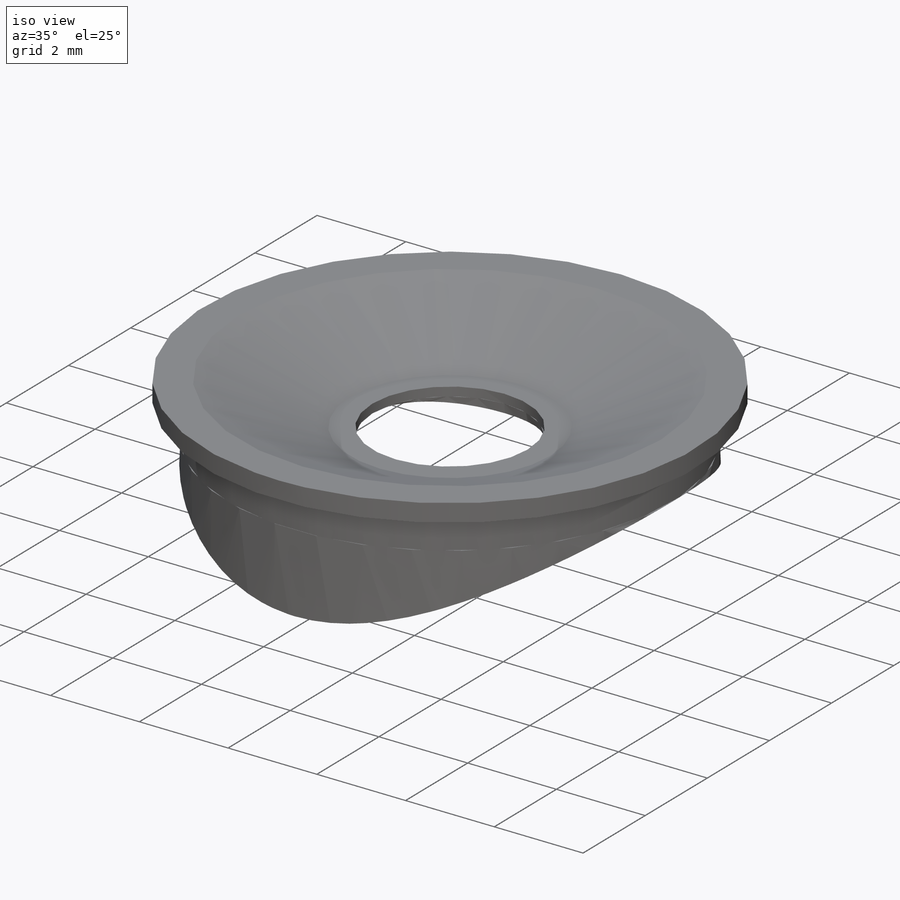
[diagram: iso view]
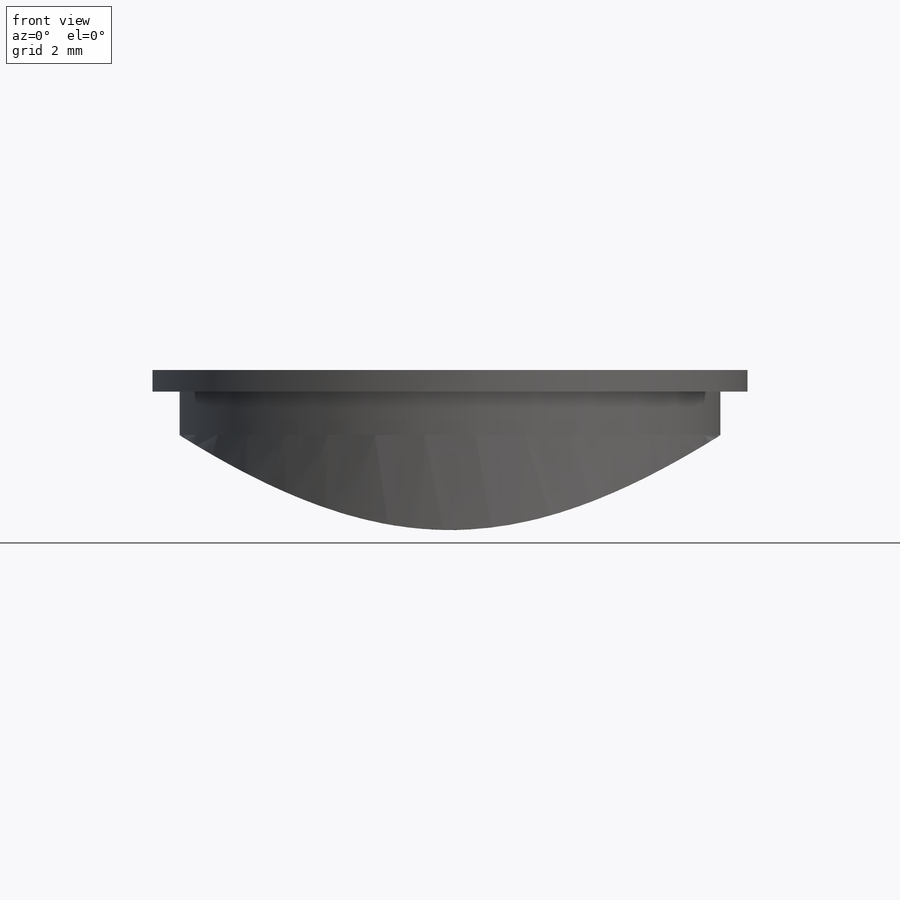
[diagram: front view]
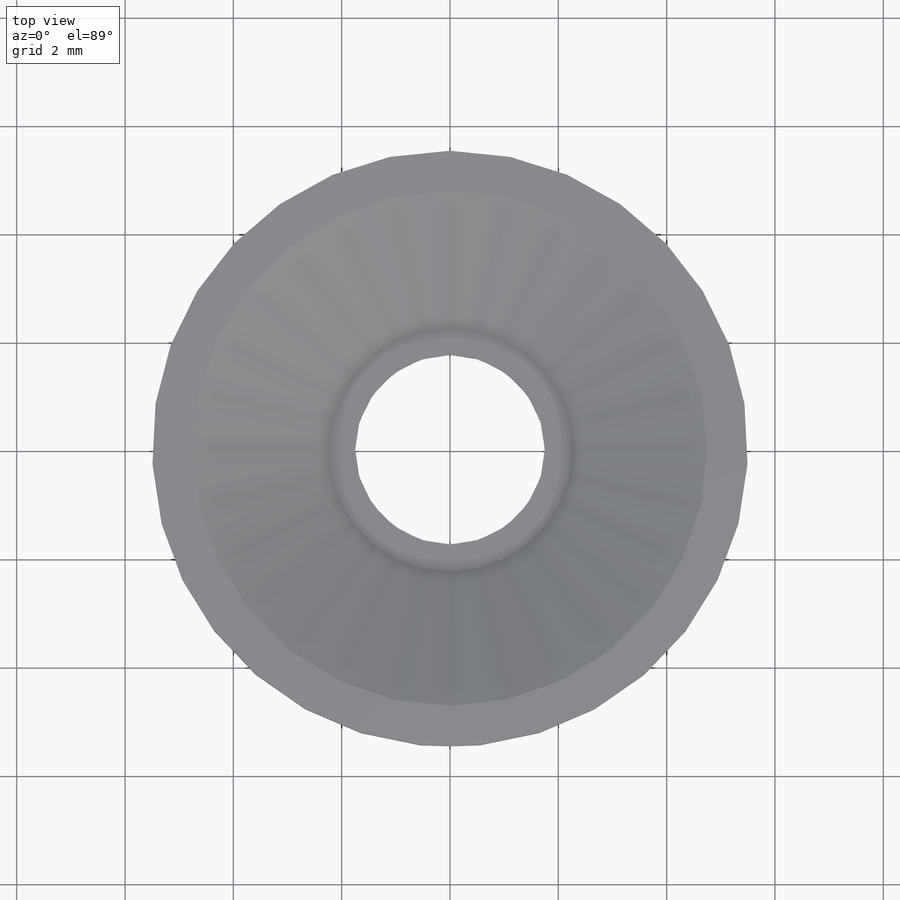
[diagram: top view]
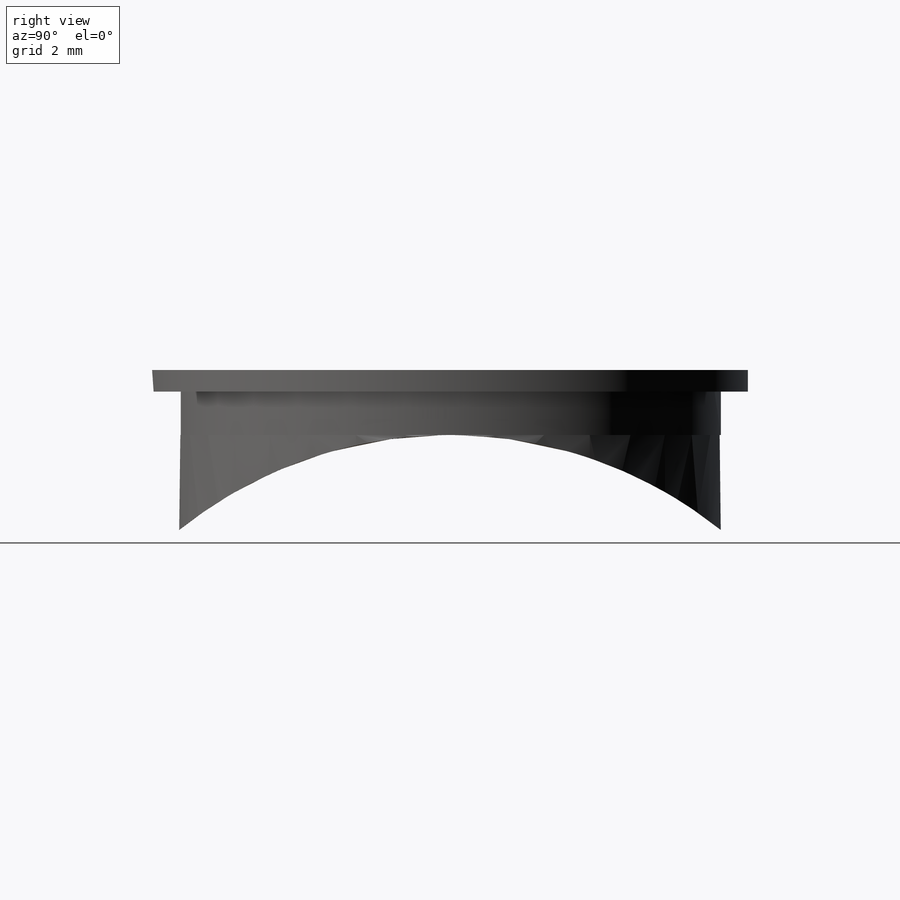
[diagram: right view]
SOLIDWORKS PART (.sldprt)
format: sldprt  version: not decoded by parser v0  size: 219,136 bytes
history: native  units: mm
features: sketch x6, cut_extrude x4, extrude x2, material x1, chamfer x1 (+12 scaffold rows collapsed)
feature tree (26):
  scaffold x12  (default folders/planes/origin — collapsed)
  material  "Material <not specified>"
  sketch  "Sketch1"  dims[D1=3.5mm D2=11.0mm]
  extrude  "Extrude1"  Depth=1.2mm
  sketch  "Sketch2"  dims[D1=4.5mm]
  cut_extrude  "Cut-Extrude3"  Depth=1mm
  chamfer  "Chamfer4"  Distance=2.5mm
  sketch  "Sketch6"  dims[c1.D1=20.0mm c1.D2=10.0mm c2.D1=10.0mm]
  cut_extrude  "Cut-Extrude4"  Depth=0.8mm
  sketch  "Sketch7"
  extrude  "Boss-Extrude1"  Depth=2mm
  sketch  "Sketch8"  dims[D1=~1.758037mm]
  cut_extrude  "Cut-Extrude5"  [1 undecoded]
  sketch  "Sketch9"  dims[D1=6.0mm]
  cut_extrude  "Cut-Extrude7"  [1 undecoded]
decode coverage: 10 of 13 modeling features carry decoded parameters
note: ~ marks probable driven/reference dimensions
note: 2 parameter values undecoded
note: suppression state not decoded; provenance and decode notes live in map.json
